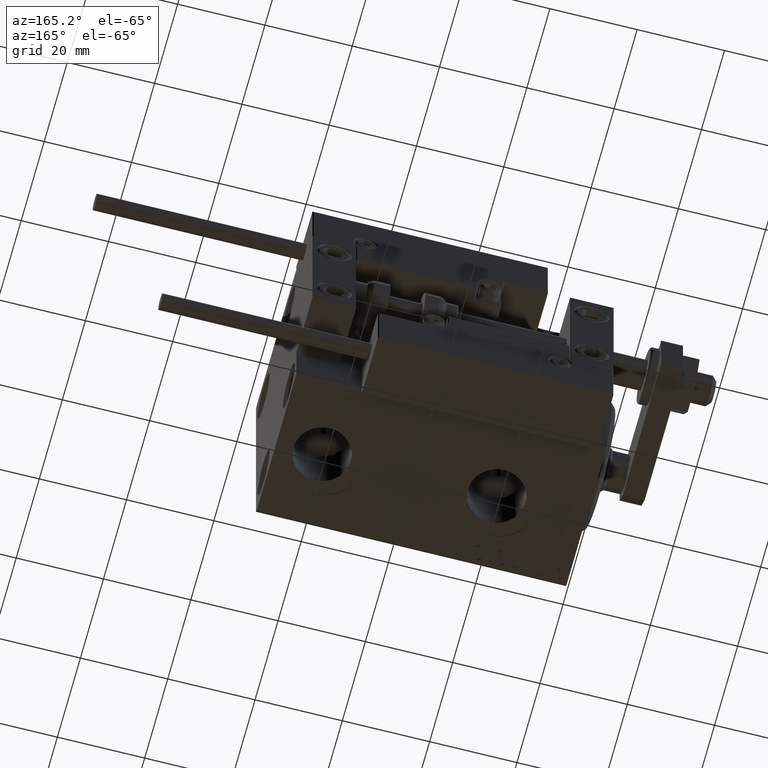
[diagram: clean part render]
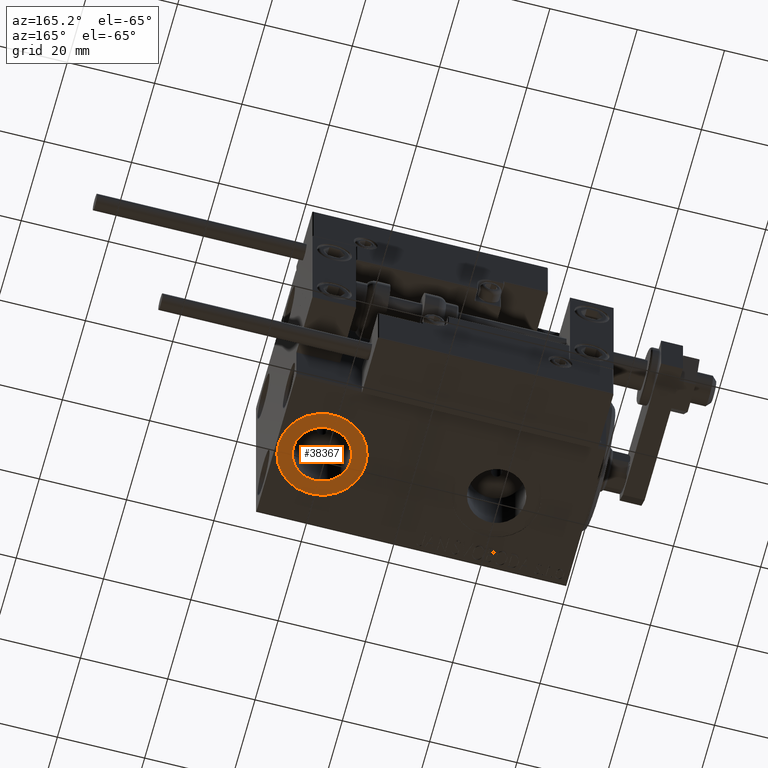
[diagram: same view with one face highlighted and labeled with its STEP entity id]
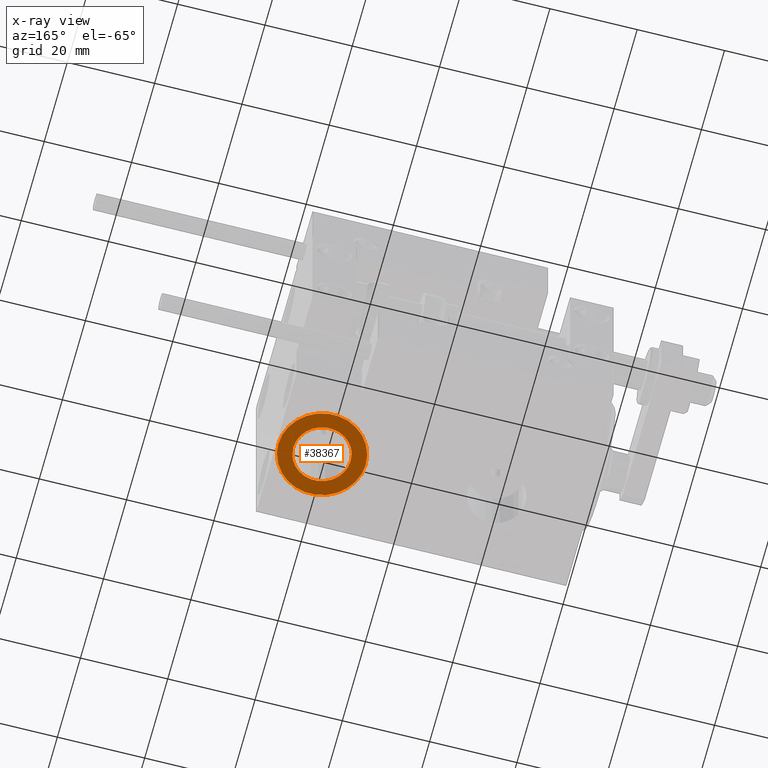
[diagram: x-ray of the same camera — body ghosted, the highlighted face saturated]
A machine part, auxiliary view. The second image highlights one B-rep face of the part: STEP entity #38367.
The next image is the same camera in x-ray: the body ghosted, the highlighted face saturated — about 0% of this face is hidden behind the body in this view.
In plain terms, the highlighted planar face has unit normal (0, 0, -1).
Its self-contained STEP definition (entity closure, byte-faithful):
#3759 = CARTESIAN_POINT ( 'NONE',  ( 53.91999999999998749, -6.938893903907228378E-15, -27.40000000000000568 ) ) ;
#4857 = CIRCLE ( 'NONE', #37324, 10.00000000000000178 ) ;
#7869 = ORIENTED_EDGE ( 'NONE', *, *, #41608, .F. ) ;
#8115 = FACE_OUTER_BOUND ( 'NONE', #27264, .T. ) ;
#9044 = ORIENTED_EDGE ( 'NONE', *, *, #43925, .T. ) ;
#9879 = EDGE_LOOP ( 'NONE', ( #7869, #39232 ) ) ;
#11457 = AXIS2_PLACEMENT_3D ( 'NONE', #13932, #31370, #23030 ) ;
#12313 = CIRCLE ( 'NONE', #11457, 6.580000000000002736 ) ;
#13932 = CARTESIAN_POINT ( 'NONE',  ( 60.49999999999999289, -6.938893903907228378E-15, -27.40000000000000568 ) ) ;
#15628 = AXIS2_PLACEMENT_3D ( 'NONE', #26879, #42507, #46695 ) ;
#17999 = AXIS2_PLACEMENT_3D ( 'NONE', #35982, #28160, #44052 ) ;
#18208 = VERTEX_POINT ( 'NONE', #35232 ) ;
#20090 = PLANE ( 'NONE',  #17999 ) ;
#21390 = CARTESIAN_POINT ( 'NONE',  ( 60.49999999999999289, -6.938893903907228378E-15, -27.40000000000000568 ) ) ;
#23030 = DIRECTION ( 'NONE',  ( -1.000000000000000000, 0.000000000000000000, 0.000000000000000000 ) ) ;
#24511 = VERTEX_POINT ( 'NONE', #25067 ) ;
#24745 = CIRCLE ( 'NONE', #15628, 10.00000000000000178 ) ;
#25067 = CARTESIAN_POINT ( 'NONE',  ( 70.50000000000000000, -5.714247104759874530E-15, -27.40000000000000568 ) ) ;
#26194 = ORIENTED_EDGE ( 'NONE', *, *, #42038, .T. ) ;
#26879 = CARTESIAN_POINT ( 'NONE',  ( 60.49999999999999289, -6.938893903907228378E-15, -27.40000000000000568 ) ) ;
#27264 = EDGE_LOOP ( 'NONE', ( #9044, #26194 ) ) ;
#28160 = DIRECTION ( 'NONE',  ( 0.000000000000000000, 0.000000000000000000, -1.000000000000000000 ) ) ;
#28942 = DIRECTION ( 'NONE',  ( 0.000000000000000000, 0.000000000000000000, -1.000000000000000000 ) ) ;
#30425 = CARTESIAN_POINT ( 'NONE',  ( 67.07999999999999829, -6.133076310068270125E-15, -27.40000000000000568 ) ) ;
#31370 = DIRECTION ( 'NONE',  ( 0.000000000000000000, 0.000000000000000000, -1.000000000000000000 ) ) ;
#32858 = CARTESIAN_POINT ( 'NONE',  ( 60.49999999999999289, -6.938893903907228378E-15, -27.40000000000000568 ) ) ;
#33358 = DIRECTION ( 'NONE',  ( -1.000000000000000000, 0.000000000000000000, 0.000000000000000000 ) ) ;
#34977 = VERTEX_POINT ( 'NONE', #3759 ) ;
#35232 = CARTESIAN_POINT ( 'NONE',  ( 50.49999999999998579, -6.938893903907228378E-15, -27.40000000000000568 ) ) ;
#35982 = CARTESIAN_POINT ( 'NONE',  ( 60.49999999999999289, -6.938893903907228378E-15, -27.40000000000000568 ) ) ;
#37324 = AXIS2_PLACEMENT_3D ( 'NONE', #32858, #28942, #33358 ) ;
#38367 = ADVANCED_FACE ( 'NONE', ( #48497, #8115 ), #20090, .T. ) ;
#39169 = AXIS2_PLACEMENT_3D ( 'NONE', #21390, #44841, #48779 ) ;
#39232 = ORIENTED_EDGE ( 'NONE', *, *, #48724, .F. ) ;
#41608 = EDGE_CURVE ( 'NONE', #34977, #44374, #12313, .T. ) ;
#42038 = EDGE_CURVE ( 'NONE', #24511, #18208, #24745, .T. ) ;
#42507 = DIRECTION ( 'NONE',  ( 0.000000000000000000, 0.000000000000000000, -1.000000000000000000 ) ) ;
#43925 = EDGE_CURVE ( 'NONE', #18208, #24511, #4857, .T. ) ;
#44052 = DIRECTION ( 'NONE',  ( -1.000000000000000000, 0.000000000000000000, -0.000000000000000000 ) ) ;
#44374 = VERTEX_POINT ( 'NONE', #30425 ) ;
#44841 = DIRECTION ( 'NONE',  ( 0.000000000000000000, 0.000000000000000000, -1.000000000000000000 ) ) ;
#46695 = DIRECTION ( 'NONE',  ( -1.000000000000000000, 0.000000000000000000, 0.000000000000000000 ) ) ;
#48497 = FACE_BOUND ( 'NONE', #9879, .T. ) ;
#48724 = EDGE_CURVE ( 'NONE', #44374, #34977, #49152, .T. ) ;
#48779 = DIRECTION ( 'NONE',  ( -1.000000000000000000, 0.000000000000000000, 0.000000000000000000 ) ) ;
#49152 = CIRCLE ( 'NONE', #39169, 6.580000000000002736 ) ;